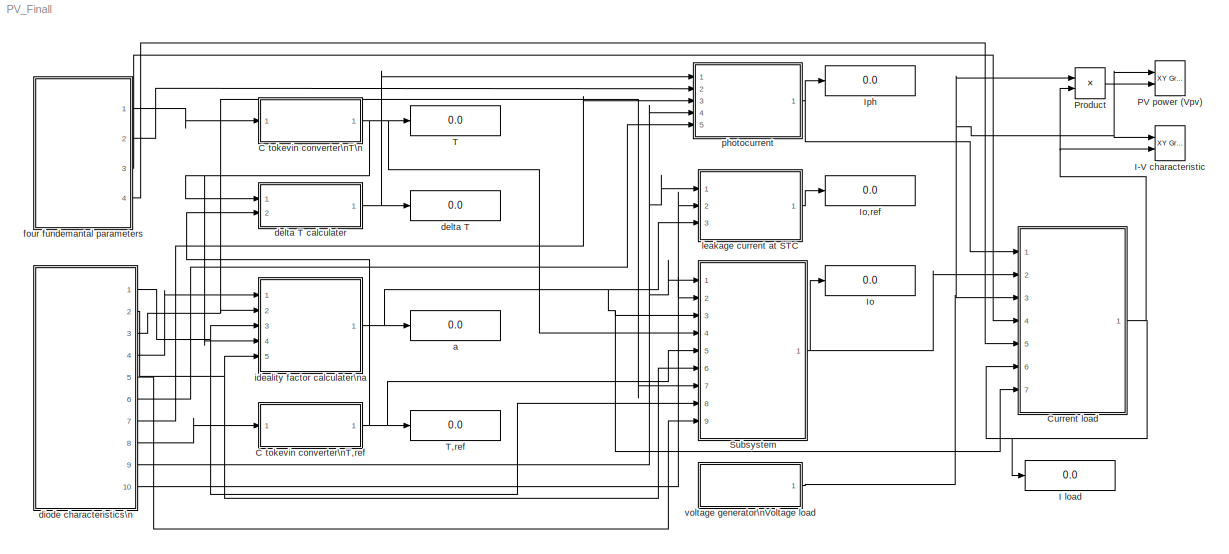
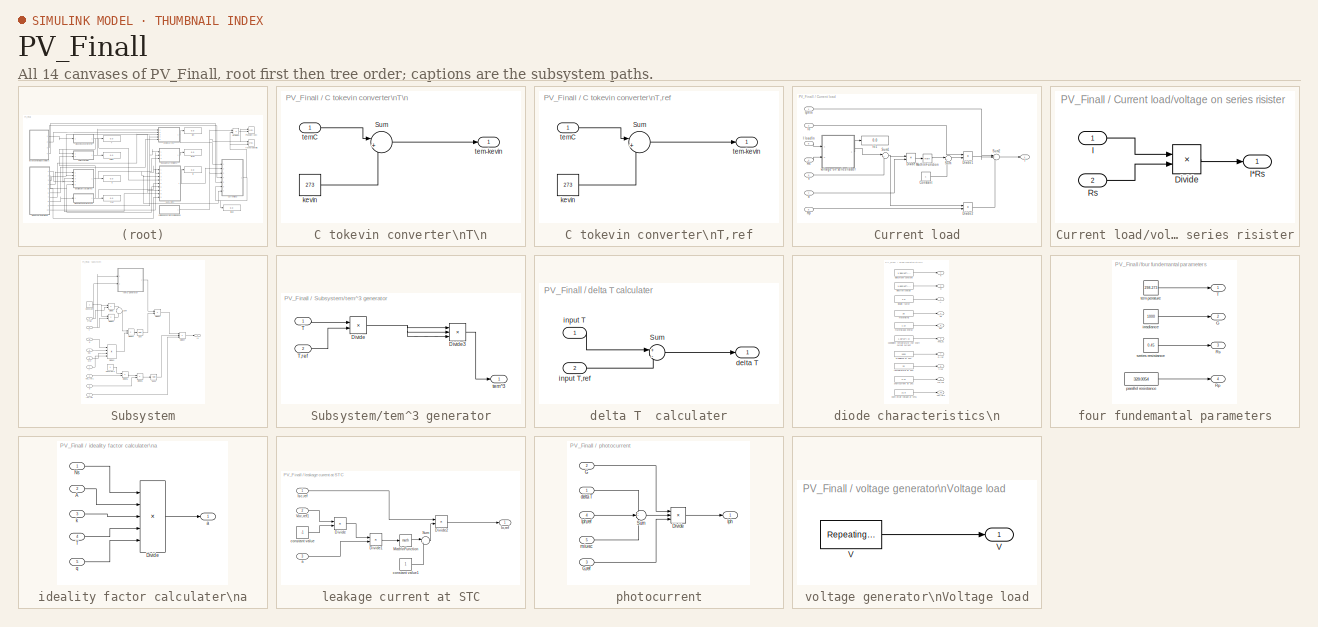
[diagram: thumbnail index - all 14 canvases of the model, root first then tree order]
MODEL PV_Finall
KIND model
BLOCK [SubSystem] C tokevin converter\nT,ref
  Ports = [1, 1]
  RequestExecContextInheritance = off
  SID = 83
  Variant = off
BLOCK [Sum] C tokevin converter\nT,ref/Sum
  IconShape = round
  InputSameDT = off
  Inputs = |+||+
  OutDataTypeStr = Inherit: Inherit via internal rule
  Ports = [2, 1]
  SID = 85
  SaturateOnIntegerOverflow = off
BLOCK [Constant] C tokevin converter\nT,ref/kevin
  SID = 86
  Value = 273
BLOCK [Outport] C tokevin converter\nT,ref/tem-kevin
  IconDisplay = Port number
  SID = 87
BLOCK [Inport] C tokevin converter\nT,ref/temC
  IconDisplay = Port number
  SID = 84
BLOCK [SubSystem] C tokevin converter\nT\n
  Ports = [1, 1]
  RequestExecContextInheritance = off
  SID = 61
  Variant = off
BLOCK [Sum] C tokevin converter\nT\n/Sum
  IconShape = round
  InputSameDT = off
  Inputs = |+||+
  OutDataTypeStr = Inherit: Inherit via internal rule
  Ports = [2, 1]
  SID = 81
  SaturateOnIntegerOverflow = off
BLOCK [Constant] C tokevin converter\nT\n/kevin
  SID = 82
  Value = 273
BLOCK [Outport] C tokevin converter\nT\n/tem-kevin
  IconDisplay = Port number
  SID = 63
BLOCK [Inport] C tokevin converter\nT\n/temC
  IconDisplay = Port number
  SID = 62
BLOCK [SubSystem] Current load
  Ports = [7, 1]
  RequestExecContextInheritance = off
  SID = 166
  Variant = off
BLOCK [Constant] Current load/Constant
  SID = 186
BLOCK [Product] Current load/Divide
  InputSameDT = off
  Inputs = */
  OutDataTypeStr = Inherit: Inherit via internal rule
  Ports = [2, 1]
  RndMeth = Floor
  SID = 184
  SaturateOnIntegerOverflow = off
BLOCK [Product] Current load/Divide1
  InputSameDT = off
  OutDataTypeStr = Inherit: Inherit via internal rule
  Ports = [2, 1]
  RndMeth = Floor
  SID = 187
  SaturateOnIntegerOverflow = off
BLOCK [Product] Current load/Divide2
  InputSameDT = off
  Inputs = */
  OutDataTypeStr = Inherit: Inherit via internal rule
  Ports = [2, 1]
  RndMeth = Floor
  SID = 188
  SaturateOnIntegerOverflow = off
BLOCK [Outport] Current load/I
  IconDisplay = Port number
  SID = 168
BLOCK [Inport] Current load/I load\n
  IconDisplay = Port number
  Port = 6
  SID = 174
BLOCK [Inport] Current load/Io
  IconDisplay = Port number
  Port = 2
  SID = 169
BLOCK [Display] Current load/Io1
  Decimation = 1
  Ports = [1]
  SID = 181
BLOCK [Inport] Current load/Iph\n
  IconDisplay = Port number
  SID = 167
BLOCK [Math] Current load/Math\nFunction
  Ports = [1, 1]
  SID = 185
BLOCK [Inport] Current load/Rp
  IconDisplay = Port number
  Port = 5
  SID = 172
BLOCK [Inport] Current load/Rs
  IconDisplay = Port number
  Port = 4
  SID = 171
BLOCK [Sum] Current load/Sum
  IconShape = round
  InputSameDT = off
  Inputs = |+-
  OutDataTypeStr = Inherit: Inherit via internal rule
  Ports = [2, 1]
  SID = 182
  SaturateOnIntegerOverflow = off
BLOCK [Sum] Current load/Sum1
  IconShape = round
  InputSameDT = off
  Inputs = |++
  OutDataTypeStr = Inherit: Inherit via internal rule
  Ports = [2, 1]
  SID = 183
  SaturateOnIntegerOverflow = off
BLOCK [Sum] Current load/Sum2
  IconShape = round
  InputSameDT = off
  Inputs = |+--
  OutDataTypeStr = Inherit: Inherit via internal rule
  Ports = [3, 1]
  SID = 189
  SaturateOnIntegerOverflow = off
BLOCK [Inport] Current load/V
  IconDisplay = Port number
  Port = 3
  SID = 170
BLOCK [Inport] Current load/a
  IconDisplay = Port number
  Port = 7
  SID = 175
BLOCK [SubSystem] Current load/voltage on series risister
  Ports = [2, 1]
  RequestExecContextInheritance = off
  SID = 176
  Variant = off
BLOCK [Product] Current load/voltage on series risister/Divide
  InputSameDT = off
  OutDataTypeStr = Inherit: Inherit via internal rule
  Ports = [2, 1]
  RndMeth = Floor
  SID = 180
  SaturateOnIntegerOverflow = off
BLOCK [Inport] Current load/voltage on series risister/I
  IconDisplay = Port number
  SID = 177
BLOCK [Outport] Current load/voltage on series risister/I*Rs
  IconDisplay = Port number
  SID = 178
BLOCK [Inport] Current load/voltage on series risister/Rs
  IconDisplay = Port number
  Port = 2
  SID = 179
BLOCK [Display] I load
  Decimation = 1
  Ports = [1]
  SID = 200
BLOCK [Reference] I-V characteristic  REF=simulink/Sinks/XY Graph
  Ports = [2]
  SID = 195
  SourceBlock = simulink/Sinks/XY Graph
  SourceProductBaseCode = SL
  SourceProductName = Simulink
  SourceType = XY scope.
  st = -1
  xmax = 25
  xmin = 0
  ymax = 4
  ymin = 0
BLOCK [Display] Io
  Decimation = 1
  Ports = [1]
  SID = 159
BLOCK [Display] Io,ref
  Decimation = 1
  Ports = [1]
  SID = 115
BLOCK [Display] Iph
  Decimation = 1
  Ports = [1]
  SID = 101
BLOCK [Reference] PV power (Vpv)  REF=simulink/Sinks/XY Graph
  Ports = [2]
  SID = 197
  SourceBlock = simulink/Sinks/XY Graph
  SourceProductBaseCode = SL
  SourceProductName = Simulink
  SourceType = XY scope.
  st = -1
  xmax = 25
  xmin = 0
  ymax = 70
  ymin = 0
BLOCK [Product] Product
  InputSameDT = off
  OutDataTypeStr = Inherit: Inherit via internal rule
  Ports = [2, 1]
  SID = 198
  SaturateOnIntegerOverflow = off
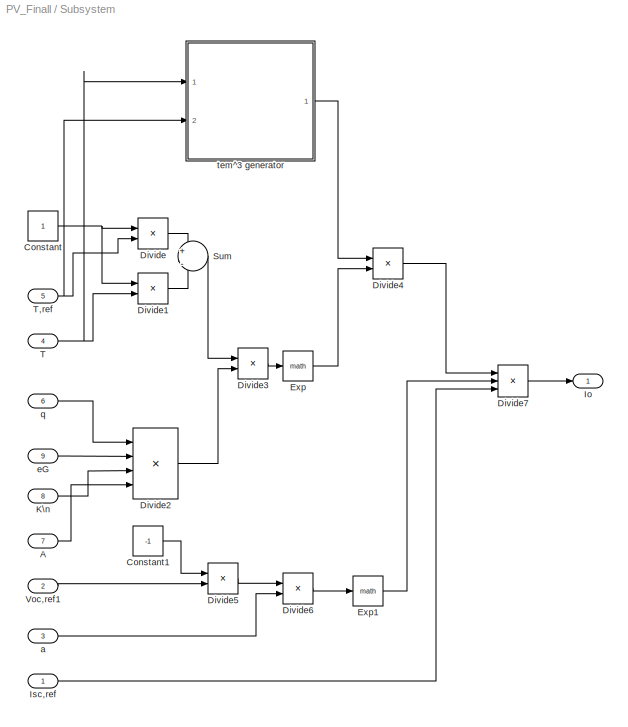
BLOCK [SubSystem] Subsystem
  Ports = [9, 1]
  RequestExecContextInheritance = off
  SID = 116
  Variant = off
BLOCK [Inport] Subsystem/A
  IconDisplay = Port number
  Port = 7
  SID = 124
BLOCK [Constant] Subsystem/Constant
  SID = 145
BLOCK [Constant] Subsystem/Constant1
  SID = 153
  Value = -1
BLOCK [Product] Subsystem/Divide
  InputSameDT = off
  Inputs = */
  OutDataTypeStr = Inherit: Inherit via internal rule
  Ports = [2, 1]
  RndMeth = Floor
  SID = 146
  SaturateOnIntegerOverflow = off
BLOCK [Product] Subsystem/Divide1
  InputSameDT = off
  Inputs = */
  OutDataTypeStr = Inherit: Inherit via internal rule
  Ports = [2, 1]
  RndMeth = Floor
  SID = 147
  SaturateOnIntegerOverflow = off
BLOCK [Product] Subsystem/Divide2
  InputSameDT = off
  Inputs = **//
  OutDataTypeStr = Inherit: Inherit via internal rule
  Ports = [4, 1]
  RndMeth = Floor
  SID = 149
  SaturateOnIntegerOverflow = off
BLOCK [Product] Subsystem/Divide3
  InputSameDT = off
  Inputs = **
  OutDataTypeStr = Inherit: Inherit via internal rule
  Ports = [2, 1]
  RndMeth = Floor
  SID = 150
  SaturateOnIntegerOverflow = off
BLOCK [Product] Subsystem/Divide4
  InputSameDT = off
  Inputs = **
  OutDataTypeStr = Inherit: Inherit via internal rule
  Ports = [2, 1]
  RndMeth = Floor
  SID = 152
  SaturateOnIntegerOverflow = off
BLOCK [Product] Subsystem/Divide5
  InputSameDT = off
  Inputs = **
  OutDataTypeStr = Inherit: Inherit via internal rule
  Ports = [2, 1]
  RndMeth = Floor
  SID = 154
  SaturateOnIntegerOverflow = off
BLOCK [Product] Subsystem/Divide6
  InputSameDT = off
  Inputs = */
  OutDataTypeStr = Inherit: Inherit via internal rule
  Ports = [2, 1]
  RndMeth = Floor
  SID = 155
  SaturateOnIntegerOverflow = off
BLOCK [Product] Subsystem/Divide7
  InputSameDT = off
  Inputs = 3
  OutDataTypeStr = Inherit: Inherit via internal rule
  Ports = [3, 1]
  RndMeth = Floor
  SID = 158
  SaturateOnIntegerOverflow = off
BLOCK [Math] Subsystem/Exp
  Ports = [1, 1]
  SID = 151
BLOCK [Math] Subsystem/Exp1
  Ports = [1, 1]
  SID = 156
BLOCK [Outport] Subsystem/Io
  IconDisplay = Port number
  SID = 118
BLOCK [Inport] Subsystem/Isc,ref
  IconDisplay = Port number
  SID = 117
BLOCK [Inport] Subsystem/K\n
  IconDisplay = Port number
  Port = 8
  SID = 125
BLOCK [Sum] Subsystem/Sum
  IconShape = round
  InputSameDT = off
  Inputs = +|-
  OutDataTypeStr = Inherit: Inherit via internal rule
  Ports = [2, 1]
  SID = 148
  SaturateOnIntegerOverflow = off
BLOCK [Inport] Subsystem/T
  IconDisplay = Port number
  Port = 4
  SID = 121
BLOCK [Inport] Subsystem/T,ref
  IconDisplay = Port number
  Port = 5
  SID = 122
BLOCK [Inport] Subsystem/Voc,ref1
  IconDisplay = Port number
  Port = 2
  SID = 119
BLOCK [Inport] Subsystem/a
  IconDisplay = Port number
  Port = 3
  SID = 120
BLOCK [Inport] Subsystem/eG
  IconDisplay = Port number
  Port = 9
  SID = 126
BLOCK [Inport] Subsystem/q
  IconDisplay = Port number
  Port = 6
  SID = 123
BLOCK [SubSystem] Subsystem/tem^3 generator
  Ports = [2, 1]
  RequestExecContextInheritance = off
  SID = 127
  Variant = off
BLOCK [Product] Subsystem/tem^3 generator/Divide
  InputSameDT = off
  Inputs = */
  OutDataTypeStr = Inherit: Inherit via internal rule
  Ports = [2, 1]
  RndMeth = Floor
  SID = 131
  SaturateOnIntegerOverflow = off
BLOCK [Product] Subsystem/tem^3 generator/Divide3
  InputSameDT = off
  Inputs = 3
  OutDataTypeStr = Inherit: Inherit via internal rule
  Ports = [3, 1]
  RndMeth = Floor
  SID = 138
  SaturateOnIntegerOverflow = off
BLOCK [Inport] Subsystem/tem^3 generator/T
  IconDisplay = Port number
  SID = 128
BLOCK [Inport] Subsystem/tem^3 generator/T,ref
  IconDisplay = Port number
  Port = 2
  SID = 130
BLOCK [Outport] Subsystem/tem^3 generator/tem^3
  IconDisplay = Port number
  SID = 129
BLOCK [Display] T
  Decimation = 1
  Ports = [1]
  SID = 89
BLOCK [Display] T,ref
  Decimation = 1
  Ports = [1]
  SID = 88
BLOCK [Display] a
  Decimation = 1
  Ports = [1]
  SID = 90
BLOCK [Display] delta T
  Decimation = 1
  Ports = [1]
  SID = 72
BLOCK [SubSystem] delta T  calculater
  Ports = [2, 1]
  RequestExecContextInheritance = off
  SID = 67
  Variant = off
BLOCK [Sum] delta T  calculater/Sum
  IconShape = round
  InputSameDT = off
  Inputs = +|-
  OutDataTypeStr = Inherit: Inherit via internal rule
  Ports = [2, 1]
  SID = 71
  SaturateOnIntegerOverflow = off
BLOCK [Outport] delta T  calculater/delta T
  IconDisplay = Port number
  SID = 69
BLOCK [Inport] delta T  calculater/input T
  IconDisplay = Port number
  SID = 68
BLOCK [Inport] delta T  calculater/input T,ref
  IconDisplay = Port number
  Port = 2
  SID = 70
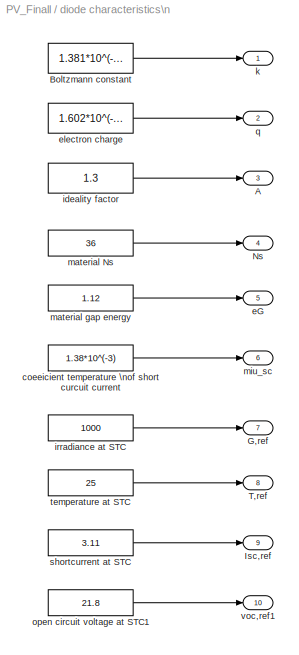
BLOCK [SubSystem] diode characteristics\n
  Ports = [0, 10]
  RequestExecContextInheritance = off
  SID = 18
  Variant = off
BLOCK [Outport] diode characteristics\n/A
  IconDisplay = Port number
  Port = 3
  SID = 25
BLOCK [Constant] diode characteristics\n/Boltzmann constant
  SID = 22
  Value = 1.381*10^(-23)
BLOCK [Outport] diode characteristics\n/G,ref
  IconDisplay = Port number
  Port = 7
  SID = 42
BLOCK [Outport] diode characteristics\n/Isc,ref
  IconDisplay = Port number
  Port = 9
  SID = 46
BLOCK [Outport] diode characteristics\n/Ns
  IconDisplay = Port number
  Port = 4
  SID = 26
BLOCK [Outport] diode characteristics\n/T,ref
  IconDisplay = Port number
  Port = 8
  SID = 44
BLOCK [Constant] diode characteristics\n/coeeicient temperature \nof short curcuit current
  SID = 39
  Value = 1.38*10^(-3)
BLOCK [Outport] diode characteristics\n/eG
  IconDisplay = Port number
  Port = 5
  SID = 38
BLOCK [Constant] diode characteristics\n/electron charge
  SID = 19
  Value = 1.602*10^(-19)
BLOCK [Constant] diode characteristics\n/ideality factor
  SID = 21
  Value = 1.3
BLOCK [Constant] diode characteristics\n/irradiance at STC
  SID = 41
  Value = 1000
BLOCK [Outport] diode characteristics\n/k
  IconDisplay = Port number
  SID = 23
BLOCK [Constant] diode characteristics\n/material Ns
  SID = 20
  Value = 36
BLOCK [Constant] diode characteristics\n/material gap energy
  SID = 37
  Value = 1.12
BLOCK [Outport] diode characteristics\n/miu_sc
  IconDisplay = Port number
  Port = 6
  SID = 40
BLOCK [Constant] diode characteristics\n/open circuit voltage at STC1
  SID = 47
  Value = 21.8
BLOCK [Outport] diode characteristics\n/q
  IconDisplay = Port number
  Port = 2
  SID = 24
BLOCK [Constant] diode characteristics\n/shortcurrent at STC
  SID = 45
  Value = 3.11
BLOCK [Constant] diode characteristics\n/temperature at STC
  SID = 43
  Value = 25
BLOCK [Outport] diode characteristics\n/voc,ref1
  IconDisplay = Port number
  Port = 10
  SID = 48
BLOCK [SubSystem] four fundemantal parameters
  Ports = [0, 4]
  RequestExecContextInheritance = off
  SID = 2
  Variant = off
BLOCK [Outport] four fundemantal parameters/G
  IconDisplay = Port number
  Port = 2
  SID = 14
BLOCK [Outport] four fundemantal parameters/Rp
  IconDisplay = Port number
  Port = 4
  SID = 17
BLOCK [Outport] four fundemantal parameters/Rs
  IconDisplay = Port number
  Port = 3
  SID = 15
BLOCK [Outport] four fundemantal parameters/T
  IconDisplay = Port number
  SID = 4
BLOCK [Constant] four fundemantal parameters/irradiance
  SID = 6
  Value = 1000
BLOCK [Constant] four fundemantal parameters/parallel resistance
  SID = 16
  Value = 328.0054
BLOCK [Constant] four fundemantal parameters/series resistance
  SID = 7
  Value = 0.45
BLOCK [Constant] four fundemantal parameters/temperature
  SID = 5
  Value = 298-273
BLOCK [SubSystem] ideality factor calculater\na
  Ports = [5, 1]
  RequestExecContextInheritance = off
  SID = 64
  Variant = off
BLOCK [Inport] ideality factor calculater\na/A
  IconDisplay = Port number
  Port = 2
  SID = 73
BLOCK [Product] ideality factor calculater\na/Divide
  InputSameDT = off
  Inputs = ****/
  OutDataTypeStr = Inherit: Inherit via internal rule
  Ports = [5, 1]
  RndMeth = Floor
  SID = 77
  SaturateOnIntegerOverflow = off
BLOCK [Inport] ideality factor calculater\na/Ns
  IconDisplay = Port number
  SID = 65
BLOCK [Inport] ideality factor calculater\na/T
  IconDisplay = Port number
  Port = 4
  SID = 75
BLOCK [Outport] ideality factor calculater\na/a
  IconDisplay = Port number
  SID = 66
BLOCK [Inport] ideality factor calculater\na/k
  IconDisplay = Port number
  Port = 3
  SID = 74
BLOCK [Inport] ideality factor calculater\na/q
  IconDisplay = Port number
  Port = 5
  SID = 76
BLOCK [SubSystem] leakage current at STC
  Ports = [3, 1]
  RequestExecContextInheritance = off
  SID = 102
  Variant = off
BLOCK [Product] leakage current at STC/Divide
  InputSameDT = off
  OutDataTypeStr = Inherit: Inherit via internal rule
  Ports = [2, 1]
  RndMeth = Floor
  SID = 110
  SaturateOnIntegerOverflow = off
BLOCK [Product] leakage current at STC/Divide1
  InputSameDT = off
  Inputs = */
  OutDataTypeStr = Inherit: Inherit via internal rule
  Ports = [2, 1]
  RndMeth = Floor
  SID = 111
  SaturateOnIntegerOverflow = off
BLOCK [Product] leakage current at STC/Divide2
  InputSameDT = off
  OutDataTypeStr = Inherit: Inherit via internal rule
  Ports = [2, 1]
  RndMeth = Floor
  SID = 112
  SaturateOnIntegerOverflow = off
BLOCK [Outport] leakage current at STC/Io,ref
  IconDisplay = Port number
  SID = 104
BLOCK [Inport] leakage current at STC/Isc,ref
  IconDisplay = Port number
  SID = 103
BLOCK [Math] leakage current at STC/Math\nFunction
  Ports = [1, 1]
  SID = 108
BLOCK [Sum] leakage current at STC/Sum
  IconShape = round
  InputSameDT = off
  Inputs = |+-
  OutDataTypeStr = Inherit: Inherit via internal rule
  Ports = [2, 1]
  SID = 113
  SaturateOnIntegerOverflow = off
BLOCK [Inport] leakage current at STC/Voc,ref1
  IconDisplay = Port number
  Port = 2
  SID = 105
BLOCK [Inport] leakage current at STC/a
  IconDisplay = Port number
  Port = 3
  SID = 106
BLOCK [Constant] leakage current at STC/constant value
  SID = 107
  Value = -1
BLOCK [Constant] leakage current at STC/constant value1
  SID = 114
BLOCK [SubSystem] photocurrent
  Ports = [5, 1]
  RequestExecContextInheritance = off
  SID = 91
  Variant = off
BLOCK [Product] photocurrent/Divide
  InputSameDT = off
  Inputs = **/
  OutDataTypeStr = Inherit: Inherit via internal rule
  Ports = [3, 1]
  RndMeth = Floor
  SID = 100
  SaturateOnIntegerOverflow = off
BLOCK [Inport] photocurrent/G
  IconDisplay = Port number
  Port = 2
  SID = 94
BLOCK [Inport] photocurrent/G,ref
  IconDisplay = Port number
  Port = 3
  SID = 95
BLOCK [Outport] photocurrent/Iph
  IconDisplay = Port number
  SID = 93
BLOCK [Inport] photocurrent/Iph,ref
  IconDisplay = Port number
  Port = 4
  SID = 96
BLOCK [Sum] photocurrent/Sum
  IconShape = round
  InputSameDT = off
  Inputs = 3
  OutDataTypeStr = Inherit: Inherit via internal rule
  Ports = [3, 1]
  SID = 99
  SaturateOnIntegerOverflow = off
BLOCK [Inport] photocurrent/delta T
  IconDisplay = Port number
  SID = 92
BLOCK [Inport] photocurrent/miu-sc
  IconDisplay = Port number
  Port = 5
  SID = 97
BLOCK [SubSystem] voltage generator\nVoltage load
  Ports = [0, 1]
  RequestExecContextInheritance = off
  SID = 162
  Variant = off
BLOCK [Outport] voltage generator\nVoltage load/V
  IconDisplay = Port number
  SID = 164
BLOCK [Reference] voltage generator\nVoltage load/V        REF=simulink/Sources/Repeating\nSequence
  Ports = [0, 1]
  SID = 160
  SourceBlock = simulink/Sources/Repeating\nSequence
  SourceProductBaseCode = SL
  SourceProductName = Simulink
  SourceType = Repeating table
  rep_seq_t = [0 1 2]
  rep_seq_y = [0  21.5 0]
LINE C tokevin converter\nT,ref/Sum:1 -> C tokevin converter\nT,ref/tem-kevin:1
LINE C tokevin converter\nT,ref/kevin:1 -> C tokevin converter\nT,ref/Sum:2
LINE C tokevin converter\nT,ref/temC:1 -> C tokevin converter\nT,ref/Sum:1
NET C tokevin converter\nT,ref:1 -> Subsystem:5, T,ref:1, delta T  calculater:2
LINE C tokevin converter\nT\n/Sum:1 -> C tokevin converter\nT\n/tem-kevin:1
LINE C tokevin converter\nT\n/kevin:1 -> C tokevin converter\nT\n/Sum:2
LINE C tokevin converter\nT\n/temC:1 -> C tokevin converter\nT\n/Sum:1
NET C tokevin converter\nT\n:1 -> Subsystem:4, T:1, delta T  calculater:1, ideality factor calculater\na:4
LINE Current load/Constant:1 -> Current load/Sum:2
LINE Current load/Divide1:1 -> Current load/Sum2:2
LINE Current load/Divide2:1 -> Current load/Sum2:3
LINE Current load/Divide:1 -> Current load/Math\nFunction:1
LINE Current load/I load\n:1 -> Current load/voltage on series risister:1
LINE Current load/Io:1 -> Current load/Divide1:1
LINE Current load/Iph\n:1 -> Current load/Sum2:1
LINE Current load/Math\nFunction:1 -> Current load/Sum:1
LINE Current load/Rp:1 -> Current load/Divide2:2
LINE Current load/Rs:1 -> Current load/voltage on series risister:2
NET Current load/Sum1:1 -> Current load/Divide2:1, Current load/Divide:1
LINE Current load/Sum2:1 -> Current load/I:1
LINE Current load/Sum:1 -> Current load/Divide1:2
LINE Current load/V:1 -> Current load/Sum1:2
LINE Current load/a:1 -> Current load/Divide:2
LINE Current load/voltage on series risister/Divide:1 -> Current load/voltage on series risister/I*Rs:1
LINE Current load/voltage on series risister/I:1 -> Current load/voltage on series risister/Divide:1
LINE Current load/voltage on series risister/Rs:1 -> Current load/voltage on series risister/Divide:2
NET Current load/voltage on series risister:1 -> Current load/Io1:1, Current load/Sum1:1
NET Current load:1 -> Current load:6, I load:1, I-V characteristic:2, Product:2
LINE Product:1 -> PV power (Vpv):2
LINE Subsystem/A:1 -> Subsystem/Divide2:4
LINE Subsystem/Constant1:1 -> Subsystem/Divide5:1
NET Subsystem/Constant:1 -> Subsystem/Divide1:1, Subsystem/Divide:1
LINE Subsystem/Divide1:1 -> Subsystem/Sum:2
LINE Subsystem/Divide2:1 -> Subsystem/Divide3:2
LINE Subsystem/Divide3:1 -> Subsystem/Exp:1
LINE Subsystem/Divide4:1 -> Subsystem/Divide7:1
LINE Subsystem/Divide5:1 -> Subsystem/Divide6:1
LINE Subsystem/Divide6:1 -> Subsystem/Exp1:1
LINE Subsystem/Divide7:1 -> Subsystem/Io:1
LINE Subsystem/Divide:1 -> Subsystem/Sum:1
LINE Subsystem/Exp1:1 -> Subsystem/Divide7:2
LINE Subsystem/Exp:1 -> Subsystem/Divide4:2
LINE Subsystem/Isc,ref:1 -> Subsystem/Divide7:3
LINE Subsystem/K\n:1 -> Subsystem/Divide2:3
LINE Subsystem/Sum:1 -> Subsystem/Divide3:1
NET Subsystem/T,ref:1 -> Subsystem/Divide:2, Subsystem/tem^3 generator:2
NET Subsystem/T:1 -> Subsystem/Divide1:2, Subsystem/tem^3 generator:1
LINE Subsystem/Voc,ref1:1 -> Subsystem/Divide5:2
LINE Subsystem/a:1 -> Subsystem/Divide6:2
LINE Subsystem/eG:1 -> Subsystem/Divide2:2
LINE Subsystem/q:1 -> Subsystem/Divide2:1
LINE Subsystem/tem^3 generator/Divide3:1 -> Subsystem/tem^3 generator/tem^3:1
NET Subsystem/tem^3 generator/Divide:1 -> Subsystem/tem^3 generator/Divide3:1, Subsystem/tem^3 generator/Divide3:2, Subsystem/tem^3 generator/Divide3:3
LINE Subsystem/tem^3 generator/T,ref:1 -> Subsystem/tem^3 generator/Divide:2
LINE Subsystem/tem^3 generator/T:1 -> Subsystem/tem^3 generator/Divide:1
LINE Subsystem/tem^3 generator:1 -> Subsystem/Divide4:1
NET Subsystem:1 -> Current load:2, Io:1
LINE delta T  calculater/Sum:1 -> delta T  calculater/delta T:1
LINE delta T  calculater/input T,ref:1 -> delta T  calculater/Sum:2
LINE delta T  calculater/input T:1 -> delta T  calculater/Sum:1
NET delta T  calculater:1 -> delta T:1, photocurrent:1
LINE diode characteristics\n/Boltzmann constant:1 -> diode characteristics\n/k:1
LINE diode characteristics\n/coeeicient temperature \nof short curcuit current:1 -> diode characteristics\n/miu_sc:1
LINE diode characteristics\n/electron charge:1 -> diode characteristics\n/q:1
LINE diode characteristics\n/ideality factor:1 -> diode characteristics\n/A:1
LINE diode characteristics\n/irradiance at STC:1 -> diode characteristics\n/G,ref:1
LINE diode characteristics\n/material Ns:1 -> diode characteristics\n/Ns:1
LINE diode characteristics\n/material gap energy:1 -> diode characteristics\n/eG:1
LINE diode characteristics\n/open circuit voltage at STC1:1 -> diode characteristics\n/voc,ref1:1
LINE diode characteristics\n/shortcurrent at STC:1 -> diode characteristics\n/Isc,ref:1
LINE diode characteristics\n/temperature at STC:1 -> diode characteristics\n/T,ref:1
NET diode characteristics\n:1 -> Subsystem:8, ideality factor calculater\na:3
NET diode characteristics\n:10 -> Subsystem:2, leakage current at STC:2
NET diode characteristics\n:2 -> Subsystem:6, ideality factor calculater\na:5
NET diode characteristics\n:3 -> Subsystem:7, ideality factor calculater\na:2
LINE diode characteristics\n:4 -> ideality factor calculater\na:1
LINE diode characteristics\n:5 -> Subsystem:9
LINE diode characteristics\n:6 -> photocurrent:5
LINE diode characteristics\n:7 -> photocurrent:3
LINE diode characteristics\n:8 -> C tokevin converter\nT,ref:1
NET diode characteristics\n:9 -> Subsystem:1, leakage current at STC:1, photocurrent:4
LINE four fundemantal parameters/irradiance:1 -> four fundemantal parameters/G:1
LINE four fundemantal parameters/parallel resistance:1 -> four fundemantal parameters/Rp:1
LINE four fundemantal parameters/series resistance:1 -> four fundemantal parameters/Rs:1
LINE four fundemantal parameters/temperature:1 -> four fundemantal parameters/T:1
LINE four fundemantal parameters:1 -> C tokevin converter\nT\n:1
LINE four fundemantal parameters:2 -> photocurrent:2
LINE four fundemantal parameters:3 -> Current load:4
LINE four fundemantal parameters:4 -> Current load:5
LINE ideality factor calculater\na/A:1 -> ideality factor calculater\na/Divide:2
LINE ideality factor calculater\na/Divide:1 -> ideality factor calculater\na/a:1
LINE ideality factor calculater\na/Ns:1 -> ideality factor calculater\na/Divide:1
LINE ideality factor calculater\na/T:1 -> ideality factor calculater\na/Divide:4
LINE ideality factor calculater\na/k:1 -> ideality factor calculater\na/Divide:3
LINE ideality factor calculater\na/q:1 -> ideality factor calculater\na/Divide:5
NET ideality factor calculater\na:1 -> Current load:7, Subsystem:3, a:1, leakage current at STC:3
LINE leakage current at STC/Divide1:1 -> leakage current at STC/Math\nFunction:1
LINE leakage current at STC/Divide2:1 -> leakage current at STC/Io,ref:1
LINE leakage current at STC/Divide:1 -> leakage current at STC/Divide1:1
LINE leakage current at STC/Isc,ref:1 -> leakage current at STC/Divide2:1
LINE leakage current at STC/Math\nFunction:1 -> leakage current at STC/Sum:1
LINE leakage current at STC/Sum:1 -> leakage current at STC/Divide2:2
LINE leakage current at STC/Voc,ref1:1 -> leakage current at STC/Divide:1
LINE leakage current at STC/a:1 -> leakage current at STC/Divide1:2
LINE leakage current at STC/constant value1:1 -> leakage current at STC/Sum:2
LINE leakage current at STC/constant value:1 -> leakage current at STC/Divide:2
LINE leakage current at STC:1 -> Io,ref:1
LINE photocurrent/Divide:1 -> photocurrent/Iph:1
LINE photocurrent/G,ref:1 -> photocurrent/Divide:3
LINE photocurrent/G:1 -> photocurrent/Divide:1
LINE photocurrent/Iph,ref:1 -> photocurrent/Sum:2
LINE photocurrent/Sum:1 -> photocurrent/Divide:2
LINE photocurrent/delta T:1 -> photocurrent/Sum:1
LINE photocurrent/miu-sc:1 -> photocurrent/Sum:3
NET photocurrent:1 -> Current load:1, Iph:1
LINE voltage generator\nVoltage load/V      :1 -> voltage generator\nVoltage load/V:1
NET voltage generator\nVoltage load:1 -> Current load:3, I-V characteristic:1, PV power (Vpv):1, Product:1
note: NET lines group one-source signal fan-out (src -> all destinations, sorted); 1:1 wires keep LINE
